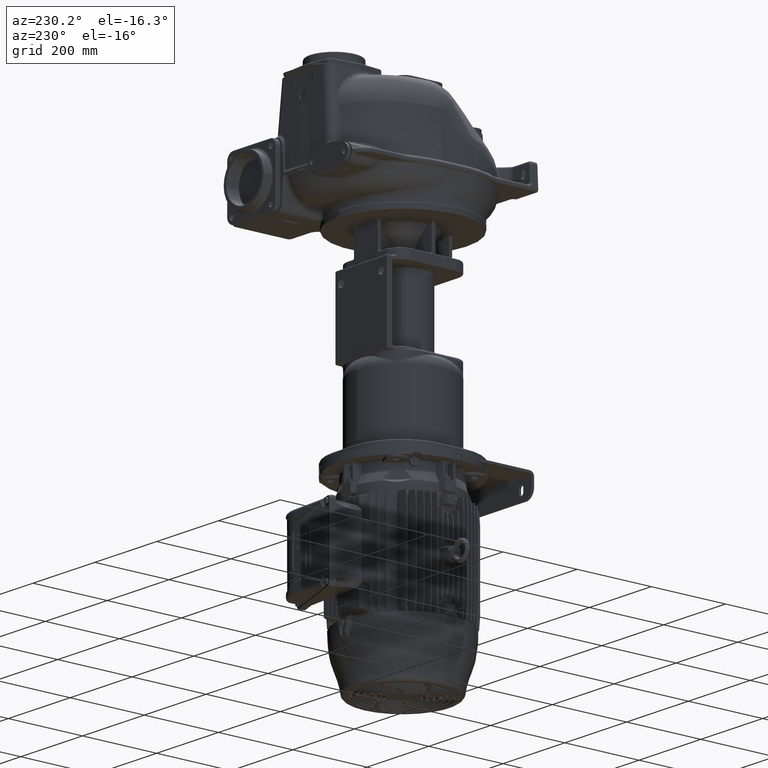
[diagram: clean part render]
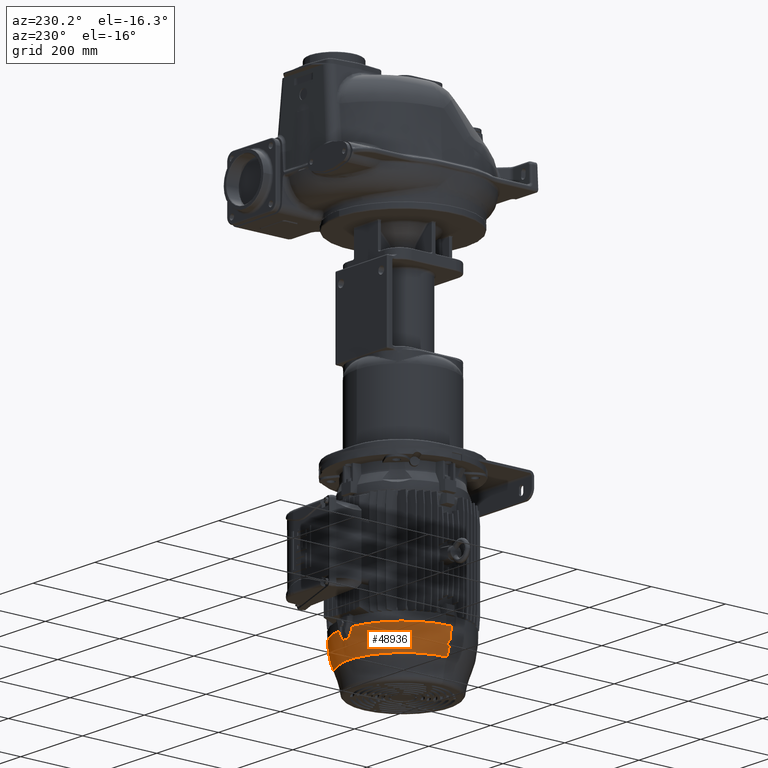
[diagram: same view with one face highlighted and labeled with its STEP entity id]
A machine part, auxiliary view. The second image highlights one B-rep face of the part: STEP entity #48936.
In plain terms, the highlighted face is a freeform B-spline surface patch.
Its self-contained STEP definition (entity closure, byte-faithful):
#444=CARTESIAN_POINT('',(4.209660939871E1,3.746829410924E2,-9.795578225722E2));
#454=CARTESIAN_POINT('',(1.745463572637E2,2.422331932274E2,-9.795578225722E2));
#749=CARTESIAN_POINT('',(1.736830150154E2,2.296872819357E2,-1.002320679514E3));
#750=CARTESIAN_POINT('',(1.737740270981E2,2.303240646838E2,-1.001497498468E3));
#751=CARTESIAN_POINT('',(1.739472986237E2,2.316051648276E2,-9.997771593127E2));
#752=CARTESIAN_POINT('',(1.742381560046E2,2.340584157847E2,-9.962076124834E2));
#753=CARTESIAN_POINT('',(1.745929813036E2,2.380090490186E2,-9.896735367246E2));
#754=CARTESIAN_POINT('',(1.746345470348E2,2.407289188891E2,-9.837055064517E2));
#755=CARTESIAN_POINT('',(1.745463572637E2,2.422331932274E2,-9.795578225722E2));
#762=CARTESIAN_POINT('',(-3.780024948732E0,2.2E2,-9.740608902496E2));
#763=DIRECTION('',(0.E0,1.E0,0.E0));
#764=DIRECTION('',(9.660341785750E-1,0.E0,-2.584143297591E-1));
#765=AXIS2_PLACEMENT_3D('',#762,#763,#764);
#767=CARTESIAN_POINT('',(1.701151791804E2,2.249963658915E2,-1.020229788222E3));
#768=CARTESIAN_POINT('',(1.701131677095E2,2.244435089483E2,-1.020306603197E3));
#769=CARTESIAN_POINT('',(1.701098170469E2,2.233362363120E2,-1.020434559840E3));
#770=CARTESIAN_POINT('',(1.701067979924E2,2.216691542674E2,-1.020549852878E3));
#771=CARTESIAN_POINT('',(1.701061271948E2,2.205567286737E2,-1.020575469606E3));
#772=CARTESIAN_POINT('',(1.701061271948E2,2.2E2,-1.020575469606E3));
#774=CARTESIAN_POINT('',(1.715524052069E2,2.243952949745E2,-1.014510980454E3));
#775=CARTESIAN_POINT('',(1.714032581129E2,2.244623541237E2,-1.015149005640E3));
#776=CARTESIAN_POINT('',(1.710979329580E2,2.245962902571E2,-1.016423322826E3));
#777=CARTESIAN_POINT('',(1.706188204007E2,2.247966626756E2,-1.018329739043E3));
#778=CARTESIAN_POINT('',(1.702853991745E2,2.249298604976E2,-1.019597031665E3));
#779=CARTESIAN_POINT('',(1.701151791804E2,2.249963658915E2,-1.020229788222E3));
#781=CARTESIAN_POINT('',(-3.780024948732E0,2.2E2,-9.740608902496E2));
#782=DIRECTION('',(0.E0,1.E0,0.E0));
#783=DIRECTION('',(9.877699480425E-1,0.E0,-1.559183431931E-1));
#784=AXIS2_PLACEMENT_3D('',#781,#782,#783);
#786=CARTESIAN_POINT('',(1.736830150154E2,2.296872819357E2,-1.002320679514E3));
#787=CARTESIAN_POINT('',(1.737930415753E2,2.281015420043E2,-1.002256907197E3));
#788=CARTESIAN_POINT('',(1.739188863057E2,2.256961412369E2,-1.002183968142E3));
#789=CARTESIAN_POINT('',(1.740041299886E2,2.224628042887E2,-1.002134560929E3));
#790=CARTESIAN_POINT('',(1.740185657253E2,2.208205831019E2,-1.002126191333E3));
#791=CARTESIAN_POINT('',(1.740185658163E2,2.2E2,-1.002126191280E3));
#793=CARTESIAN_POINT('',(1.986341617127E1,2.2E2,-9.795578226274E2));
#794=DIRECTION('',(0.E0,0.E0,-1.E0));
#795=DIRECTION('',(1.422718546429E-1,9.898276210414E-1,0.E0));
#796=AXIS2_PLACEMENT_3D('',#793,#794,#795);
#798=CARTESIAN_POINT('',(2.955069860933E1,3.738195987115E2,-1.002320680151E3));
#799=CARTESIAN_POINT('',(3.018748149138E1,3.739106108019E2,-1.001497498958E3));
#800=CARTESIAN_POINT('',(3.146860143372E1,3.740838788192E2,-9.997771738643E2));
#801=CARTESIAN_POINT('',(3.392184258442E1,3.743747380725E2,-9.962076189080E2));
#802=CARTESIAN_POINT('',(3.787248713243E1,3.747295615952E2,-9.896735481164E2));
#803=CARTESIAN_POINT('',(4.059233480874E1,3.747711308942E2,-9.837055072866E2));
#804=CARTESIAN_POINT('',(4.209660939871E1,3.746829410924E2,-9.795578225722E2));
#806=CARTESIAN_POINT('',(1.017613373323E1,3.738195987111E2,-1.002320680151E3));
#807=CARTESIAN_POINT('',(1.176187437070E1,3.739296253444E2,-1.002256907791E3));
#808=CARTESIAN_POINT('',(1.416727384201E1,3.740554700062E2,-1.002183968695E3));
#809=CARTESIAN_POINT('',(1.740154334740E1,3.741407384958E2,-1.002134545946E3));
#810=CARTESIAN_POINT('',(1.986628338728E1,3.741623792372E2,-1.002122002858E3));
#811=CARTESIAN_POINT('',(2.233065162601E1,3.741406402897E2,-1.002134602867E3));
#812=CARTESIAN_POINT('',(2.556347691691E1,3.740552938400E2,-1.002184070803E3));
#813=CARTESIAN_POINT('',(2.796677307727E1,3.739294994566E2,-1.002256980757E3));
#814=CARTESIAN_POINT('',(2.955069860933E1,3.738195987115E2,-1.002320680151E3));
#816=CARTESIAN_POINT('',(1.986341617127E1,2.2E2,-9.795578226274E2));
#817=DIRECTION('',(0.E0,0.E0,-1.E0));
#818=DIRECTION('',(-1.E0,0.E0,0.E0));
#819=AXIS2_PLACEMENT_3D('',#816,#817,#818);
#821=CARTESIAN_POINT('',(-1.303883468379E2,2.249963658915E2,-1.020229788222E3));
#822=CARTESIAN_POINT('',(-1.305585668320E2,2.249298604976E2,-1.019597031665E3));
#823=CARTESIAN_POINT('',(-1.308919880581E2,2.247966626756E2,-1.018329739043E3));
#824=CARTESIAN_POINT('',(-1.313711006155E2,2.245962902571E2,-1.016423322826E3));
#825=CARTESIAN_POINT('',(-1.316764257704E2,2.244623541237E2,-1.015149005640E3));
#826=CARTESIAN_POINT('',(-1.318255728644E2,2.243952949745E2,-1.014510980454E3));
#828=CARTESIAN_POINT('',(-1.303792948522E2,2.2E2,-1.020575469606E3));
#829=CARTESIAN_POINT('',(-1.303792948522E2,2.205567286737E2,-1.020575469606E3));
#830=CARTESIAN_POINT('',(-1.303799656499E2,2.216691542674E2,-1.020549852878E3));
#831=CARTESIAN_POINT('',(-1.303829847043E2,2.233362363120E2,-1.020434559840E3));
#832=CARTESIAN_POINT('',(-1.303863353669E2,2.244435089483E2,-1.020306603197E3));
#833=CARTESIAN_POINT('',(-1.303883468379E2,2.249963658915E2,-1.020229788222E3));
#835=CARTESIAN_POINT('',(-5.093548746178E1,3.526200275243E2,-1.020229776443E3));
#836=CARTESIAN_POINT('',(-5.107819278951E1,3.527341896109E2,-1.019597019870E3));
#837=CARTESIAN_POINT('',(-5.136025333233E1,3.529563407879E2,-1.018329744548E3));
#838=CARTESIAN_POINT('',(-5.177333834794E1,3.532710787008E2,-1.016423321253E3));
#839=CARTESIAN_POINT('',(-5.204199276773E1,3.534685298688E2,-1.015149005640E3));
#840=CARTESIAN_POINT('',(-5.217464124151E1,3.535641654665E2,-1.014510980454E3));
#842=CARTESIAN_POINT('',(-5.958944509325E1,3.476236610518E2,-1.020229786706E3));
#843=CARTESIAN_POINT('',(-5.862838898945E1,3.481738746509E2,-1.020383651736E3));
#844=CARTESIAN_POINT('',(-5.670573913504E1,3.492777329676E2,-1.020588170257E3));
#845=CARTESIAN_POINT('',(-5.380980605589E1,3.509496996890E2,-1.020588176377E3));
#846=CARTESIAN_POINT('',(-5.189251461575E1,3.520628352372E2,-1.020383641503E3));
#847=CARTESIAN_POINT('',(-5.093548746178E1,3.526200275243E2,-1.020229776443E3));
#849=CARTESIAN_POINT('',(-5.978751545158E1,3.491688704920E2,-1.014510980454E3));
#850=CARTESIAN_POINT('',(-5.977101683139E1,3.490061757451E2,-1.015149005640E3));
#851=CARTESIAN_POINT('',(-5.973434634350E1,3.486747883727E2,-1.016423322624E3));
#852=CARTESIAN_POINT('',(-5.966831768931E1,3.481596783607E2,-1.018329739751E3));
#853=CARTESIAN_POINT('',(-5.961695972539E1,3.478043285811E2,-1.019597030147E3));
#854=CARTESIAN_POINT('',(-5.958944509325E1,3.476236610518E2,-1.020229786706E3));
#856=CARTESIAN_POINT('',(2.485978206279E1,3.702517630091E2,-1.020229788222E3));
#857=CARTESIAN_POINT('',(2.479327666882E1,3.704219830033E2,-1.019597031665E3));
#858=CARTESIAN_POINT('',(2.466007884690E1,3.707554042294E2,-1.018329739043E3));
#859=CARTESIAN_POINT('',(2.445970642834E1,3.712345167867E2,-1.016423322826E3));
#860=CARTESIAN_POINT('',(2.432577029499E1,3.715398419416E2,-1.015149005640E3));
#861=CARTESIAN_POINT('',(2.425871114576E1,3.716889890356E2,-1.014510980454E3));
#863=CARTESIAN_POINT('',(1.486705027974E1,3.702517630091E2,-1.020229788222E3));
#864=CARTESIAN_POINT('',(1.597445608921E1,3.702477339115E2,-1.020383653252E3));
#865=CARTESIAN_POINT('',(1.819144942115E1,3.702423784228E2,-1.020588171113E3));
#866=CARTESIAN_POINT('',(2.153538292152E1,3.702423784228E2,-1.020588171113E3));
#867=CARTESIAN_POINT('',(2.375237625338E1,3.702477339115E2,-1.020383653252E3));
#868=CARTESIAN_POINT('',(2.485978206279E1,3.702517630091E2,-1.020229788222E3));
#870=CARTESIAN_POINT('',(1.546812119677E1,3.716889890356E2,-1.014510980454E3));
#871=CARTESIAN_POINT('',(1.540106204754E1,3.715398419416E2,-1.015149005640E3));
#872=CARTESIAN_POINT('',(1.526712591420E1,3.712345167867E2,-1.016423322826E3));
#873=CARTESIAN_POINT('',(1.506675349563E1,3.707554042294E2,-1.018329739043E3));
#874=CARTESIAN_POINT('',(1.493355567371E1,3.704219830033E2,-1.019597031665E3));
#875=CARTESIAN_POINT('',(1.486705027974E1,3.702517630091E2,-1.020229788222E3));
#882=CARTESIAN_POINT('',(1.986341617127E1,2.2E2,-1.043348922970E3));
#883=DIRECTION('',(0.E0,0.E0,-1.E0));
#884=DIRECTION('',(-1.E0,0.E0,0.E0));
#885=AXIS2_PLACEMENT_3D('',#882,#883,#884);
#897=CARTESIAN_POINT('',(4.350685729126E1,2.2E2,-9.740608902496E2));
#898=DIRECTION('',(0.E0,-1.E0,0.E0));
#899=DIRECTION('',(-9.660341785750E-1,0.E0,-2.584143297591E-1));
#900=AXIS2_PLACEMENT_3D('',#897,#898,#899);
#907=CARTESIAN_POINT('',(-1.303792948522E2,2.2E2,-1.020575469606E3));
#916=CARTESIAN_POINT('',(4.350685729126E1,2.2E2,-9.740608902496E2));
#917=DIRECTION('',(0.E0,-1.E0,0.E0));
#918=DIRECTION('',(-9.995335908367E-1,0.E0,-3.053851320982E-2));
#919=AXIS2_PLACEMENT_3D('',#916,#917,#918);
#957=CARTESIAN_POINT('',(1.740185658163E2,2.2E2,-1.002126191280E3));
#971=CARTESIAN_POINT('',(1.701061271948E2,2.2E2,-1.020575469606E3));
#1055=CARTESIAN_POINT('',(1.986341617127E1,2.2E2,-1.01075E3));
#1056=DIRECTION('',(0.E0,0.E0,-1.E0));
#1057=DIRECTION('',(-1.E0,-6.996560021620E-13,0.E0));
#1058=AXIS2_PLACEMENT_3D('',#1055,#1056,#1057);
#1075=CARTESIAN_POINT('',(-1.327141805695E2,2.202183030139E2,-1.01075E3));
#1076=CARTESIAN_POINT('',(-1.327136034785E2,2.206216467490E2,-1.01075E3));
#1077=CARTESIAN_POINT('',(-1.326848199705E2,2.214308015655E2,
-1.010867169981E3));
#1078=CARTESIAN_POINT('',(-1.325614133528E2,2.225488501229E2,
-1.011384211291E3));
#1079=CARTESIAN_POINT('',(-1.323661994924E2,2.234806598267E2,
-1.012208510319E3));
#1080=CARTESIAN_POINT('',(-1.321138664336E2,2.241395441036E2,
-1.013279800569E3));
#1081=CARTESIAN_POINT('',(-1.319229244540E2,2.243515239924E2,
-1.014094527378E3));
#1082=CARTESIAN_POINT('',(-1.318255728644E2,2.243952949745E2,
-1.014510980454E3));
#1887=CARTESIAN_POINT('',(1.736830150154E2,2.296872819357E2,-1.002320679514E3));
#2455=CARTESIAN_POINT('',(1.986341617127E1,2.2E2,-1.01075E3));
#2456=DIRECTION('',(0.E0,0.E0,-1.E0));
#2457=DIRECTION('',(9.999989764542E-1,1.430765690164E-3,0.E0));
#2458=AXIS2_PLACEMENT_3D('',#2455,#2456,#2457);
#2468=CARTESIAN_POINT('',(1.715524052069E2,2.243952949745E2,-1.014510980454E3));
#2469=CARTESIAN_POINT('',(1.716497567826E2,2.243515239987E2,-1.014094527438E3));
#2470=CARTESIAN_POINT('',(1.718406987624E2,2.241395441416E2,-1.013279800628E3));
#2471=CARTESIAN_POINT('',(1.720930318957E2,2.234806596993E2,-1.012208510061E3));
#2472=CARTESIAN_POINT('',(1.722882458322E2,2.225488492934E2,-1.011384210714E3));
#2473=CARTESIAN_POINT('',(1.724116523504E2,2.214308008570E2,-1.010867169827E3));
#2474=CARTESIAN_POINT('',(1.724404358215E2,2.206216464515E2,-1.01075E3));
#2475=CARTESIAN_POINT('',(1.724410129120E2,2.202183030139E2,-1.01075E3));
#7884=CARTESIAN_POINT('',(2.955069860933E1,3.738195987115E2,-1.002320680151E3));
#8541=CARTESIAN_POINT('',(-2.369777056177E0,3.746829410924E2,
-9.795578225722E2));
#8550=CARTESIAN_POINT('',(1.017613373323E1,3.738195987111E2,-1.002320680151E3));
#8551=CARTESIAN_POINT('',(9.539350985076E0,3.739106107938E2,-1.001497499105E3));
#8552=CARTESIAN_POINT('',(8.258251582634E0,3.740838825157E2,-9.997771590100E2));
#8553=CARTESIAN_POINT('',(5.805000247428E0,3.743747397965E2,-9.962076126596E2));
#8554=CARTESIAN_POINT('',(1.854367257030E0,3.747295651600E2,-9.896735365924E2));
#8555=CARTESIAN_POINT('',(-8.655027178528E-1,3.747711308635E2,
-9.837055064517E2));
#8556=CARTESIAN_POINT('',(-2.369777056177E0,3.746829410924E2,
-9.795578225722E2));
#8576=CARTESIAN_POINT('',(1.017613373323E1,3.738195987111E2,-1.002320680151E3));
#8596=CARTESIAN_POINT('',(-5.978751545158E1,3.491688704920E2,
-1.014510980454E3));
#8597=CARTESIAN_POINT('',(-5.979828446244E1,3.492750649176E2,
-1.014094527438E3));
#8598=CARTESIAN_POINT('',(-5.971017551100E1,3.495464154513E2,
-1.013279800628E3));
#8599=CARTESIAN_POINT('',(-5.926573141244E1,3.500943845761E2,
-1.012208510061E3));
#8600=CARTESIAN_POINT('',(-5.855636689771E1,3.507293500072E2,
-1.011384210714E3));
#8601=CARTESIAN_POINT('',(-5.764981180823E1,3.513952474051E2,
-1.010867169827E3));
#8602=CARTESIAN_POINT('',(-5.696345527302E1,3.518247518250E2,-1.01075E3));
#8603=CARTESIAN_POINT('',(-5.661443815490E1,3.520269233189E2,-1.01075E3));
#8623=CARTESIAN_POINT('',(1.986341617127E1,2.2E2,-1.01075E3));
#8624=DIRECTION('',(0.E0,0.E0,-1.E0));
#8625=DIRECTION('',(-5.012385676617E-1,8.653091345227E-1,0.E0));
#8626=AXIS2_PLACEMENT_3D('',#8623,#8624,#8625);
#8642=CARTESIAN_POINT('',(-5.623632624330E1,3.522452263328E2,-1.01075E3));
#8643=CARTESIAN_POINT('',(-5.588673177684E1,3.524463984249E2,-1.01075E3));
#8644=CARTESIAN_POINT('',(-5.517159139615E1,3.528260485840E2,
-1.010867169981E3));
#8645=CARTESIAN_POINT('',(-5.414162963390E1,3.532781995968E2,
-1.011384211291E3));
#8646=CARTESIAN_POINT('',(-5.323705182869E1,3.535750442865E2,
-1.012208510319E3));
#8647=CARTESIAN_POINT('',(-5.254027477738E1,3.536859595857E2,
-1.013279800569E3));
#8648=CARTESIAN_POINT('',(-5.226122381873E1,3.536265889251E2,
-1.014094527378E3));
#8649=CARTESIAN_POINT('',(-5.217464124151E1,3.535641654665E2,
-1.014510980454E3));
#8659=CARTESIAN_POINT('',(1.546812119677E1,3.716889890356E2,-1.014510980454E3));
#8660=CARTESIAN_POINT('',(1.551189217259E1,3.717863406113E2,-1.014094527438E3));
#8661=CARTESIAN_POINT('',(1.572387202968E1,3.719772825911E2,-1.013279800628E3));
#8662=CARTESIAN_POINT('',(1.638275647201E1,3.722296157244E2,-1.012208510061E3));
#8663=CARTESIAN_POINT('',(1.731456687786E1,3.724248296609E2,-1.011384210714E3));
#8664=CARTESIAN_POINT('',(1.843261531426E1,3.725482361791E2,-1.010867169827E3));
#8665=CARTESIAN_POINT('',(1.924176971974E1,3.725770196502E2,-1.01075E3));
#8666=CARTESIAN_POINT('',(1.964511315732E1,3.725775967407E2,-1.01075E3));
#8686=CARTESIAN_POINT('',(1.986341617127E1,2.2E2,-1.01075E3));
#8687=DIRECTION('',(0.E0,0.E0,-1.E0));
#8688=DIRECTION('',(-1.430765690175E-3,9.999989764542E-1,0.E0));
#8689=AXIS2_PLACEMENT_3D('',#8686,#8687,#8688);
#8701=CARTESIAN_POINT('',(2.008171918521E1,3.725775967407E2,-1.01075E3));
#8702=CARTESIAN_POINT('',(2.048506292022E1,3.725770196498E2,-1.01075E3));
#8703=CARTESIAN_POINT('',(2.129421773673E1,3.725482361418E2,-1.010867169981E3));
#8704=CARTESIAN_POINT('',(2.241226629417E1,3.724248295241E2,-1.011384211291E3));
#8705=CARTESIAN_POINT('',(2.334407599801E1,3.722296156637E2,-1.012208510319E3));
#8706=CARTESIAN_POINT('',(2.400296027485E1,3.719772826049E2,-1.013279800569E3));
#8707=CARTESIAN_POINT('',(2.421494016369E1,3.717863406252E2,-1.014094527378E3));
#8708=CARTESIAN_POINT('',(2.425871114576E1,3.716889890356E2,-1.014510980454E3));
#42525=CARTESIAN_POINT('',(-5.661443815490E1,3.520269233189E2,-1.01075E3));
#42526=CARTESIAN_POINT('',(-5.623632624330E1,3.522452263328E2,-1.01075E3));
#42527=VERTEX_POINT('',#42525);
#42528=VERTEX_POINT('',#42526);
#42650=CARTESIAN_POINT('',(-1.303883468379E2,2.249963658915E2,
-1.020229788222E3));
#42652=VERTEX_POINT('',#42650);
#42653=CARTESIAN_POINT('',(-1.318255728644E2,2.243952949745E2,
-1.014510980454E3));
#42654=VERTEX_POINT('',#42653);
#42657=CARTESIAN_POINT('',(-5.978751545159E1,3.491688704920E2,
-1.014510980454E3));
#42659=VERTEX_POINT('',#42657);
#42667=CARTESIAN_POINT('',(-1.327141805695E2,2.202183030139E2,-1.01075E3));
#42669=VERTEX_POINT('',#42667);
#42670=CARTESIAN_POINT('',(2.485978206279E1,3.702517630091E2,
-1.020229788222E3));
#42671=VERTEX_POINT('',#42670);
#42672=CARTESIAN_POINT('',(2.425871114576E1,3.716889890356E2,
-1.014510980454E3));
#42673=VERTEX_POINT('',#42672);
#42680=CARTESIAN_POINT('',(2.008171918521E1,3.725775967407E2,-1.01075E3));
#42681=VERTEX_POINT('',#42680);
#42689=CARTESIAN_POINT('',(1.546812119677E1,3.716889890356E2,
-1.014510980454E3));
#42691=VERTEX_POINT('',#42689);
#42692=CARTESIAN_POINT('',(1.964511315732E1,3.725775967407E2,-1.01075E3));
#42694=VERTEX_POINT('',#42692);
#42696=CARTESIAN_POINT('',(1.486705027974E1,3.702517630091E2,
-1.020229788222E3));
#42697=VERTEX_POINT('',#42696);
#42932=VERTEX_POINT('',#835);
#42933=VERTEX_POINT('',#840);
#43099=VERTEX_POINT('',#444);
#43104=VERTEX_POINT('',#907);
#43109=CARTESIAN_POINT('',(-1.327143367398E2,2.199999999999E2,-1.01075E3));
#43110=VERTEX_POINT('',#43109);
#43114=VERTEX_POINT('',#454);
#43115=VERTEX_POINT('',#971);
#43116=VERTEX_POINT('',#957);
#43120=CARTESIAN_POINT('',(1.724411690823E2,2.199999999999E2,-1.01075E3));
#43121=VERTEX_POINT('',#43120);
#43429=CARTESIAN_POINT('',(1.724410129120E2,2.202183030139E2,-1.01075E3));
#43430=VERTEX_POINT('',#43429);
#43557=CARTESIAN_POINT('',(1.623499498355E2,2.2E2,-1.043348922970E3));
#43558=CARTESIAN_POINT('',(-1.226231174929E2,2.2E2,-1.043348922970E3));
#43559=VERTEX_POINT('',#43557);
#43560=VERTEX_POINT('',#43558);
#44019=VERTEX_POINT('',#7884);
#44021=VERTEX_POINT('',#8541);
#44023=VERTEX_POINT('',#8576);
#44027=VERTEX_POINT('',#1887);
#44048=CARTESIAN_POINT('',(1.701151791804E2,2.249963658915E2,
-1.020229788222E3));
#44050=VERTEX_POINT('',#44048);
#44061=CARTESIAN_POINT('',(1.715524052069E2,2.243952949745E2,
-1.014510980454E3));
#44062=VERTEX_POINT('',#44061);
#44064=CARTESIAN_POINT('',(-5.958944509325E1,3.476236610518E2,
-1.020229786706E3));
#44065=VERTEX_POINT('',#44064);
#44134=CARTESIAN_POINT('',(-1.364091890593E2,2.2E2,-9.795578226274E2));
#44135=VERTEX_POINT('',#44134);
#48840=CARTESIAN_POINT('',(1.615601407543E2,2.110851977219E2,
-1.044558465119E3));
#48841=CARTESIAN_POINT('',(1.705065842766E2,2.105223352046E2,
-1.023498982063E3));
#48842=CARTESIAN_POINT('',(1.753318039969E2,2.102187581115E2,
-1.001127513893E3));
#48843=CARTESIAN_POINT('',(1.758628827668E2,2.101853454674E2,
-9.782457672065E2));
#48844=CARTESIAN_POINT('',(1.670462975715E2,2.982851632720E2,
-1.044558465119E3));
#48845=CARTESIAN_POINT('',(1.763391258973E2,3.032279295491E2,
-1.023498982063E3));
#48846=CARTESIAN_POINT('',(1.813511665350E2,3.058937859035E2,
-1.001127513893E3));
#48847=CARTESIAN_POINT('',(1.819028073992E2,3.061871983895E2,
-9.782457672065E2));
#48848=CARTESIAN_POINT('',(1.072357911450E2,3.619768835312E2,
-1.044558465119E3));
#48849=CARTESIAN_POINT('',(1.127523055204E2,3.709410157206E2,
-1.023498982063E3));
#48850=CARTESIAN_POINT('',(1.157276100518E2,3.757757757355E2,
-1.001127513893E3));
#48851=CARTESIAN_POINT('',(1.160550813717E2,3.763079045400E2,
-9.782457672065E2));
#48852=CARTESIAN_POINT('',(1.986341617127E1,3.619768835312E2,
-1.044558465119E3));
#48853=CARTESIAN_POINT('',(1.986341617127E1,3.709410157206E2,
-1.023498982063E3));
#48854=CARTESIAN_POINT('',(1.986341617127E1,3.757757757355E2,
-1.001127513893E3));
#48855=CARTESIAN_POINT('',(1.986341617127E1,3.763079045400E2,
-9.782457672065E2));
#48856=CARTESIAN_POINT('',(-6.750895880251E1,3.619768835312E2,
-1.044558465119E3));
#48857=CARTESIAN_POINT('',(-7.302547317788E1,3.709410157206E2,
-1.023498982063E3));
#48858=CARTESIAN_POINT('',(-7.600077770930E1,3.757757757355E2,
-1.001127513893E3));
#48859=CARTESIAN_POINT('',(-7.632824902919E1,3.763079045400E2,
-9.782457672065E2));
#48860=CARTESIAN_POINT('',(-1.273194652289E2,2.982851632720E2,
-1.044558465119E3));
#48861=CARTESIAN_POINT('',(-1.366122935548E2,3.032279295491E2,
-1.023498982063E3));
#48862=CARTESIAN_POINT('',(-1.416243341924E2,3.058937859035E2,
-1.001127513893E3));
#48863=CARTESIAN_POINT('',(-1.421759750566E2,3.061871983895E2,
-9.782457672065E2));
#48864=CARTESIAN_POINT('',(-1.218333084118E2,2.110851977219E2,
-1.044558465119E3));
#48865=CARTESIAN_POINT('',(-1.307797519340E2,2.105223352046E2,
-1.023498982063E3));
#48866=CARTESIAN_POINT('',(-1.356049716544E2,2.102187581115E2,
-1.001127513893E3));
#48867=CARTESIAN_POINT('',(-1.361360504243E2,2.101853454674E2,
-9.782457672065E2));
#48868=(BOUNDED_SURFACE()B_SPLINE_SURFACE(3,3,((#48840,#48841,#48842,#48843),(
#48844,#48845,#48846,#48847),(#48848,#48849,#48850,#48851),(#48852,#48853,
#48854,#48855),(#48856,#48857,#48858,#48859),(#48860,#48861,#48862,#48863),(
#48864,#48865,#48866,#48867)),.UNSPECIFIED.,.F.,.F.,.F.)B_SPLINE_SURFACE_WITH_KNOTS((4,3,4),(4,4),(0.E0,1.E0,2.E0),(0.E0,1.E0),.UNSPECIFIED.)GEOMETRIC_REPRESENTATION_ITEM()RATIONAL_B_SPLINE_SURFACE(((1.197995610844E0,1.183685106377E0,
1.183685106377E0,1.197995610844E0),(9.460548224940E-1,9.347538447268E-1,
9.347538447268E-1,9.460548224940E-1),(9.460548224940E-1,9.347538447268E-1,
9.347538447268E-1,9.460548224940E-1),(1.197995610844E0,1.183685106377E0,
1.183685106377E0,1.197995610844E0),(9.460548224940E-1,9.347538447268E-1,
9.347538447268E-1,9.460548224940E-1),(9.460548224940E-1,9.347538447268E-1,
9.347538447268E-1,9.460548224940E-1),(1.197995610844E0,1.183685106377E0,
1.183685106377E0,1.197995610844E0)))REPRESENTATION_ITEM('')SURFACE());
#48870=ORIENTED_EDGE('',*,*,#48869,.T.);
#48872=ORIENTED_EDGE('',*,*,#48871,.F.);
#48874=ORIENTED_EDGE('',*,*,#48873,.F.);
#48876=ORIENTED_EDGE('',*,*,#48875,.F.);
#48878=ORIENTED_EDGE('',*,*,#48877,.T.);
#48880=ORIENTED_EDGE('',*,*,#48879,.T.);
#48882=ORIENTED_EDGE('',*,*,#48881,.F.);
#48884=ORIENTED_EDGE('',*,*,#48883,.F.);
#48885=ORIENTED_EDGE('',*,*,#48831,.T.);
#48886=ORIENTED_EDGE('',*,*,#48364,.F.);
#48888=ORIENTED_EDGE('',*,*,#48887,.F.);
#48890=ORIENTED_EDGE('',*,*,#48889,.F.);
#48892=ORIENTED_EDGE('',*,*,#48891,.T.);
#48893=ORIENTED_EDGE('',*,*,#48492,.F.);
#48895=ORIENTED_EDGE('',*,*,#48894,.T.);
#48897=ORIENTED_EDGE('',*,*,#48896,.T.);
#48899=ORIENTED_EDGE('',*,*,#48898,.T.);
#48901=ORIENTED_EDGE('',*,*,#48900,.F.);
#48903=ORIENTED_EDGE('',*,*,#48902,.F.);
#48905=ORIENTED_EDGE('',*,*,#48904,.T.);
#48906=EDGE_LOOP('',(#48870,#48872,#48874,#48876,#48878,#48880,#48882,#48884,
#48885,#48886,#48888,#48890,#48892,#48893,#48895,#48897,#48899,#48901,#48903,
#48905));
#48907=FACE_OUTER_BOUND('',#48906,.F.);
#48909=ORIENTED_EDGE('',*,*,#48908,.F.);
#48911=ORIENTED_EDGE('',*,*,#48910,.F.);
#48913=ORIENTED_EDGE('',*,*,#48912,.F.);
#48915=ORIENTED_EDGE('',*,*,#48914,.T.);
#48917=ORIENTED_EDGE('',*,*,#48916,.T.);
#48919=ORIENTED_EDGE('',*,*,#48918,.T.);
#48920=EDGE_LOOP('',(#48909,#48911,#48913,#48915,#48917,#48919));
#48921=FACE_BOUND('',#48920,.F.);
#48923=ORIENTED_EDGE('',*,*,#48922,.F.);
#48925=ORIENTED_EDGE('',*,*,#48924,.F.);
#48927=ORIENTED_EDGE('',*,*,#48926,.F.);
#48929=ORIENTED_EDGE('',*,*,#48928,.T.);
#48931=ORIENTED_EDGE('',*,*,#48930,.T.);
#48933=ORIENTED_EDGE('',*,*,#48932,.T.);
#48934=EDGE_LOOP('',(#48923,#48925,#48927,#48929,#48931,#48933));
#48935=FACE_BOUND('',#48934,.F.);
#48936=ADVANCED_FACE('',(#48907,#48921,#48935),#48868,.T.);
#756=B_SPLINE_CURVE_WITH_KNOTS('',3,(#749,#750,#751,#752,#753,#754,#755),
.UNSPECIFIED.,.F.,.F.,(4,1,1,1,4),(0.E0,1.197505693140E-1,2.455004879812E-1,
4.970003253156E-1,1.E0),.UNSPECIFIED.);
#766=CIRCLE('',#765,1.8E2);
#773=B_SPLINE_CURVE_WITH_KNOTS('',3,(#767,#768,#769,#770,#771,#772),
.UNSPECIFIED.,.F.,.F.,(4,1,1,4),(0.E0,3.333333333333E-1,6.666666666667E-1,1.E0),
.UNSPECIFIED.);
#780=B_SPLINE_CURVE_WITH_KNOTS('',3,(#774,#775,#776,#777,#778,#779),
.UNSPECIFIED.,.F.,.F.,(4,1,1,4),(0.E0,3.333333333333E-1,6.666666666667E-1,1.E0),
.UNSPECIFIED.);
#785=CIRCLE('',#784,1.8E2);
#792=B_SPLINE_CURVE_WITH_KNOTS('',3,(#786,#787,#788,#789,#790,#791),
.UNSPECIFIED.,.F.,.F.,(4,1,1,4),(0.E0,4.941422006073E-1,7.472151289024E-1,1.E0),
.UNSPECIFIED.);
#797=CIRCLE('',#796,1.562726052306E2);
#805=B_SPLINE_CURVE_WITH_KNOTS('',3,(#798,#799,#800,#801,#802,#803,#804),
.UNSPECIFIED.,.F.,.F.,(4,1,1,1,4),(0.E0,1.197505693140E-1,2.455004879812E-1,
4.970003253156E-1,1.E0),.UNSPECIFIED.);
#815=B_SPLINE_CURVE_WITH_KNOTS('',3,(#806,#807,#808,#809,#810,#811,#812,#813,
#814),.UNSPECIFIED.,.F.,.F.,(4,1,1,1,1,1,4),(0.E0,2.470000064174E-1,
3.735000033574E-1,5.000000002974E-1,6.264999972374E-1,7.529999941773E-1,1.E0),
.UNSPECIFIED.);
#820=CIRCLE('',#819,1.562726052306E2);
#827=B_SPLINE_CURVE_WITH_KNOTS('',3,(#821,#822,#823,#824,#825,#826),
.UNSPECIFIED.,.F.,.F.,(4,1,1,4),(0.E0,3.333333333333E-1,6.666666666667E-1,1.E0),
.UNSPECIFIED.);
#834=B_SPLINE_CURVE_WITH_KNOTS('',3,(#828,#829,#830,#831,#832,#833),
.UNSPECIFIED.,.F.,.F.,(4,1,1,4),(0.E0,3.333333333333E-1,6.666666666667E-1,1.E0),
.UNSPECIFIED.);
#841=B_SPLINE_CURVE_WITH_KNOTS('',3,(#835,#836,#837,#838,#839,#840),
.UNSPECIFIED.,.F.,.F.,(4,1,1,4),(0.E0,3.333333333333E-1,6.666666666667E-1,1.E0),
.UNSPECIFIED.);
#848=B_SPLINE_CURVE_WITH_KNOTS('',3,(#842,#843,#844,#845,#846,#847),
.UNSPECIFIED.,.F.,.F.,(4,1,1,4),(0.E0,3.333333333333E-1,6.666666666667E-1,1.E0),
.UNSPECIFIED.);
#855=B_SPLINE_CURVE_WITH_KNOTS('',3,(#849,#850,#851,#852,#853,#854),
.UNSPECIFIED.,.F.,.F.,(4,1,1,4),(0.E0,3.333333333333E-1,6.666666666667E-1,1.E0),
.UNSPECIFIED.);
#862=B_SPLINE_CURVE_WITH_KNOTS('',3,(#856,#857,#858,#859,#860,#861),
.UNSPECIFIED.,.F.,.F.,(4,1,1,4),(0.E0,3.333333333333E-1,6.666666666667E-1,1.E0),
.UNSPECIFIED.);
#869=B_SPLINE_CURVE_WITH_KNOTS('',3,(#863,#864,#865,#866,#867,#868),
.UNSPECIFIED.,.F.,.F.,(4,1,1,4),(0.E0,3.333333333333E-1,6.666666666667E-1,1.E0),
.UNSPECIFIED.);
#876=B_SPLINE_CURVE_WITH_KNOTS('',3,(#870,#871,#872,#873,#874,#875),
.UNSPECIFIED.,.F.,.F.,(4,1,1,4),(0.E0,3.333333333333E-1,6.666666666667E-1,1.E0),
.UNSPECIFIED.);
#886=CIRCLE('',#885,1.424865336642E2);
#901=CIRCLE('',#900,1.8E2);
#920=CIRCLE('',#919,1.8E2);
#1059=CIRCLE('',#1058,1.525777529110E2);
#1083=B_SPLINE_CURVE_WITH_KNOTS('',3,(#1075,#1076,#1077,#1078,#1079,#1080,#1081,
#1082),.UNSPECIFIED.,.F.,.F.,(4,1,1,1,1,4),(0.E0,2.E-1,4.E-1,6.E-1,8.E-1,1.E0),
.UNSPECIFIED.);
#2459=CIRCLE('',#2458,1.525777529110E2);
#2476=B_SPLINE_CURVE_WITH_KNOTS('',3,(#2468,#2469,#2470,#2471,#2472,#2473,#2474,
#2475),.UNSPECIFIED.,.F.,.F.,(4,1,1,1,1,4),(0.E0,2.E-1,4.E-1,6.E-1,8.E-1,1.E0),
.UNSPECIFIED.);
#8557=B_SPLINE_CURVE_WITH_KNOTS('',3,(#8550,#8551,#8552,#8553,#8554,#8555,
#8556),.UNSPECIFIED.,.F.,.F.,(4,1,1,1,4),(0.E0,1.197505693140E-1,
2.455004879812E-1,4.970003253156E-1,1.E0),.UNSPECIFIED.);
#8604=B_SPLINE_CURVE_WITH_KNOTS('',3,(#8596,#8597,#8598,#8599,#8600,#8601,#8602,
#8603),.UNSPECIFIED.,.F.,.F.,(4,1,1,1,1,4),(0.E0,2.E-1,4.E-1,6.E-1,8.E-1,1.E0),
.UNSPECIFIED.);
#8627=CIRCLE('',#8626,1.525777529110E2);
#8650=B_SPLINE_CURVE_WITH_KNOTS('',3,(#8642,#8643,#8644,#8645,#8646,#8647,#8648,
#8649),.UNSPECIFIED.,.F.,.F.,(4,1,1,1,1,4),(0.E0,2.E-1,4.E-1,6.E-1,8.E-1,1.E0),
.UNSPECIFIED.);
#8667=B_SPLINE_CURVE_WITH_KNOTS('',3,(#8659,#8660,#8661,#8662,#8663,#8664,#8665,
#8666),.UNSPECIFIED.,.F.,.F.,(4,1,1,1,1,4),(0.E0,2.E-1,4.E-1,6.E-1,8.E-1,1.E0),
.UNSPECIFIED.);
#8690=CIRCLE('',#8689,1.525777529110E2);
#8709=B_SPLINE_CURVE_WITH_KNOTS('',3,(#8701,#8702,#8703,#8704,#8705,#8706,#8707,
#8708),.UNSPECIFIED.,.F.,.F.,(4,1,1,1,1,4),(0.E0,2.E-1,4.E-1,6.E-1,8.E-1,1.E0),
.UNSPECIFIED.);
#48364=EDGE_CURVE('',#43099,#43114,#797,.T.);
#48492=EDGE_CURVE('',#44135,#44021,#820,.T.);
#48831=EDGE_CURVE('',#44027,#43114,#756,.T.);
#48869=EDGE_CURVE('',#43560,#43559,#886,.T.);
#48871=EDGE_CURVE('',#43115,#43559,#766,.T.);
#48873=EDGE_CURVE('',#44050,#43115,#773,.T.);
#48875=EDGE_CURVE('',#44062,#44050,#780,.T.);
#48877=EDGE_CURVE('',#44062,#43430,#2476,.T.);
#48879=EDGE_CURVE('',#43430,#43121,#2459,.T.);
#48881=EDGE_CURVE('',#43116,#43121,#785,.T.);
#48883=EDGE_CURVE('',#44027,#43116,#792,.T.);
#48887=EDGE_CURVE('',#44019,#43099,#805,.T.);
#48889=EDGE_CURVE('',#44023,#44019,#815,.T.);
#48891=EDGE_CURVE('',#44023,#44021,#8557,.T.);
#48894=EDGE_CURVE('',#44135,#43110,#920,.T.);
#48896=EDGE_CURVE('',#43110,#42669,#1059,.T.);
#48898=EDGE_CURVE('',#42669,#42654,#1083,.T.);
#48900=EDGE_CURVE('',#42652,#42654,#827,.T.);
#48902=EDGE_CURVE('',#43104,#42652,#834,.T.);
#48904=EDGE_CURVE('',#43104,#43560,#901,.T.);
#48908=EDGE_CURVE('',#42932,#42933,#841,.T.);
#48910=EDGE_CURVE('',#44065,#42932,#848,.T.);
#48912=EDGE_CURVE('',#42659,#44065,#855,.T.);
#48914=EDGE_CURVE('',#42659,#42527,#8604,.T.);
#48916=EDGE_CURVE('',#42527,#42528,#8627,.T.);
#48918=EDGE_CURVE('',#42528,#42933,#8650,.T.);
#48922=EDGE_CURVE('',#42671,#42673,#862,.T.);
#48924=EDGE_CURVE('',#42697,#42671,#869,.T.);
#48926=EDGE_CURVE('',#42691,#42697,#876,.T.);
#48928=EDGE_CURVE('',#42691,#42694,#8667,.T.);
#48930=EDGE_CURVE('',#42694,#42681,#8690,.T.);
#48932=EDGE_CURVE('',#42681,#42673,#8709,.T.);